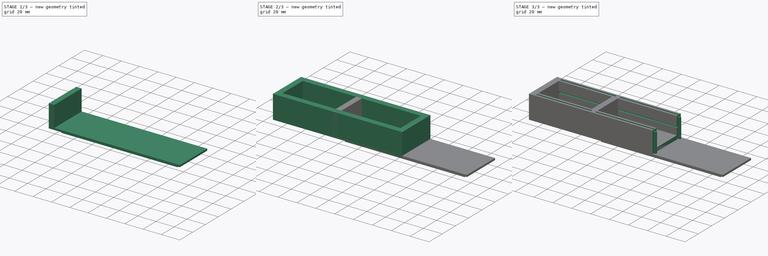
[diagram: build sequence overview — one tinted view per stage of 3, left to right]
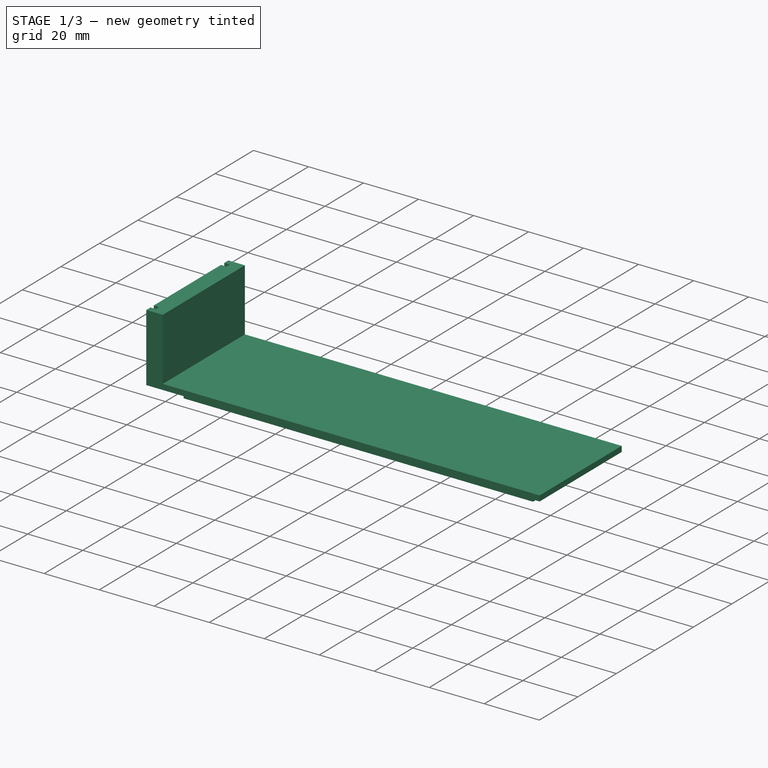
[diagram: stage 1 of 3 — iso view after this stage's code; geometry added in this stage tinted green]
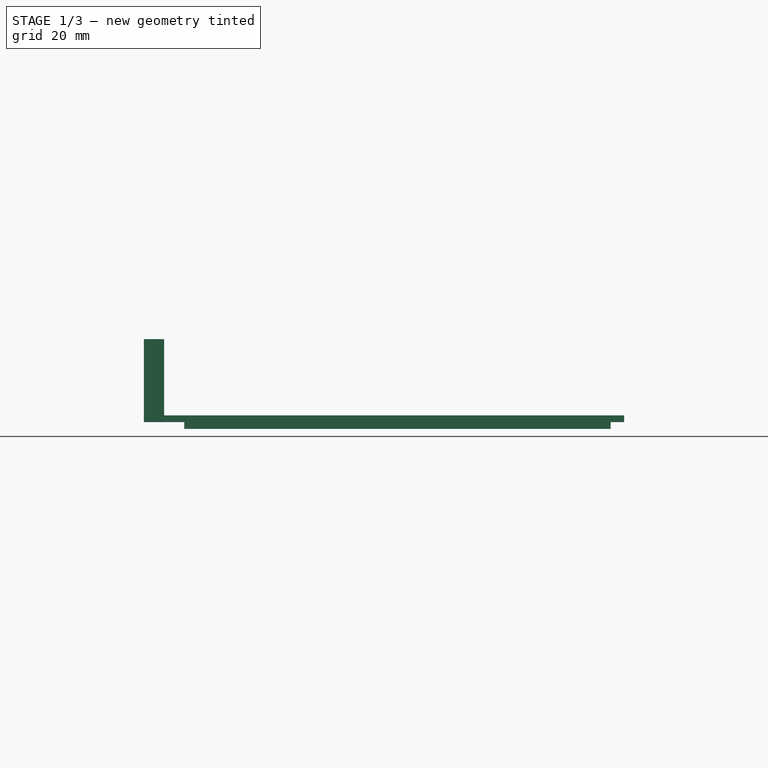
[diagram: stage 1 of 3 — front view after this stage's code; geometry added in this stage tinted green]
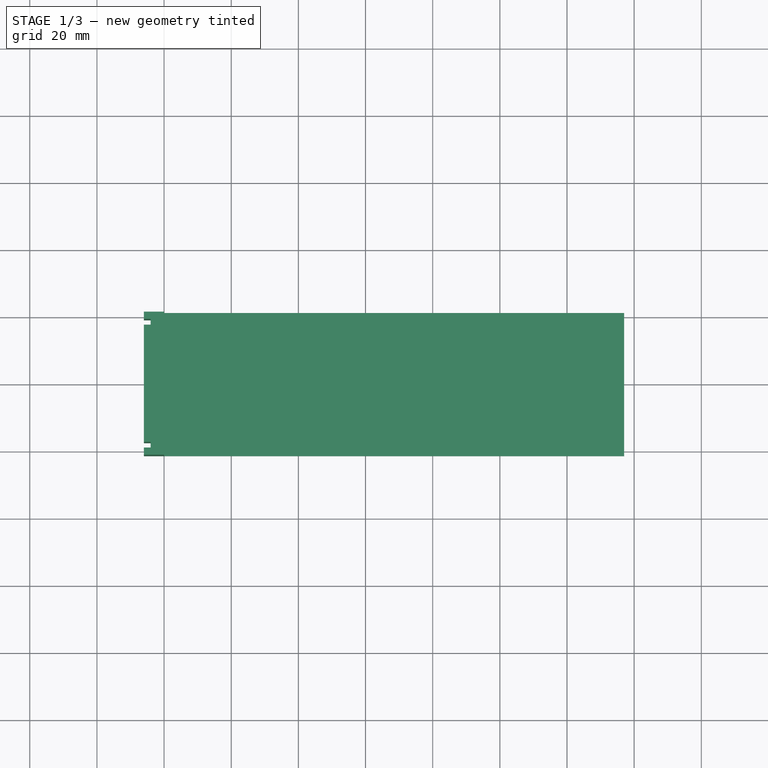
[diagram: stage 1 of 3 — top view after this stage's code; geometry added in this stage tinted green]
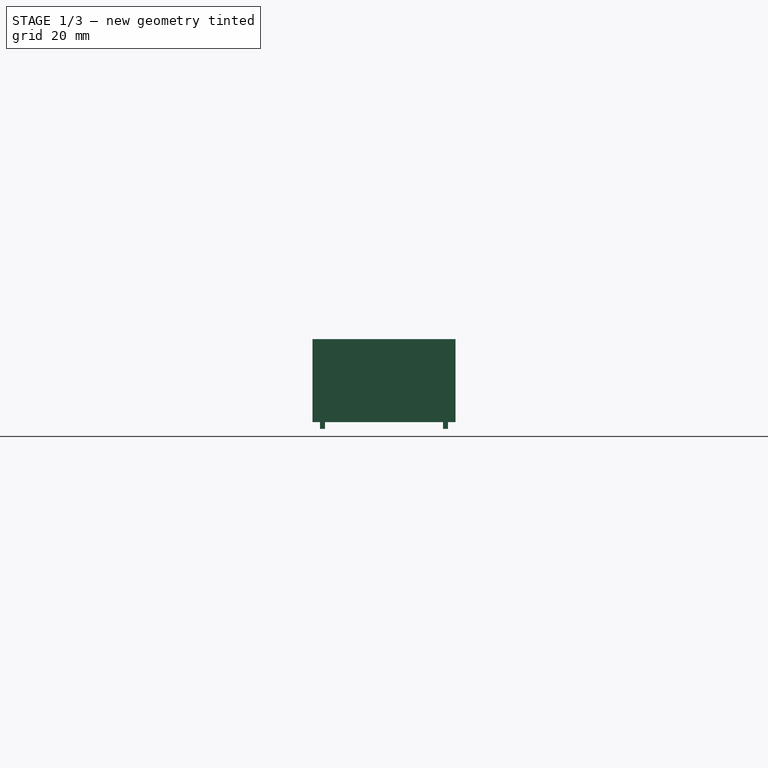
[diagram: stage 1 of 3 — right view after this stage's code; geometry added in this stage tinted green]
FCSTD DOCUMENT  (FreeCAD 0.19R24366 (Git))
Label: biky
License: All rights reserved
LicenseURL: http://en.wikipedia.org/wiki/All_rights_reserved
objects: Sketcher::SketchObject×8, PartDesign::Pocket×5, App::Part×4, PartDesign::Pad×3, PartDesign::Body×3, Spreadsheet::Sheet×1, Part::Feature×1, App::DocumentObjectGroup×1
note: 28 computed .brp shape members not serialized (recipe doc carries the construction recipe); baked Part::Feature solids carry a one-line shape summary decoded from their .brp

FEATURE [PartDesign::Body] Body
  Group = -> [Sketch,Pad,Sketch001,Pocket,Sketch002,Pocket001,Sketch003,Pocket002,Sketch004,Pocket003]
  Origin = -> Origin001
  Tip = -> Pocket003
FEATURE [App::Part] Part  label="Hull"
  Group = -> [Body]
  Origin = -> Origin
FEATURE [Sketcher::SketchObject] Sketch005
  FullyConstrained = true
  MapMode = 5
  Placement = pos=(0,0,0) rot=(0.57735,0.57735,0.57735;2.0944rad)
  Support = -> [YZ_Plane003]
  expr: .AttachmentOffset.Base.x = 0
  expr: .AttachmentOffset.Base.z = 0
  expr: Constraints[20] = (<<param>>.thickness - <<param>>.notchthickness) / 2 + 0.1
  expr: Constraints[33] = <<param>>.notchthickness - 0.2
  expr: Constraints[22] = <<param>>.widthtot
  expr: .AttachmentOffset.Base.y = 0
  expr: Constraints[18] = <<param>>.notchdepth
  sketch-geometry (12):
    g0: LineSegment StartX=-21.31 StartY=2 StartZ=0 EndX=21.31 EndY=2 EndZ=0
    g1: LineSegment StartX=21.31 StartY=2 StartZ=0 EndX=21.31 EndY=0 EndZ=0
    g2: LineSegment StartX=21.31 StartY=0 StartZ=0 EndX=19.06 EndY=0 EndZ=0
    g3: LineSegment StartX=19.06 StartY=-2 StartZ=0 EndX=17.56 EndY=-2 EndZ=0
    g4: LineSegment StartX=17.56 StartY=0 StartZ=0 EndX=-17.56 EndY=0 EndZ=0
    g5: LineSegment StartX=-17.56 StartY=0 StartZ=0 EndX=-17.56 EndY=-2 EndZ=0
    g6: LineSegment StartX=-17.56 StartY=-2 StartZ=0 EndX=-19.06 EndY=-2 EndZ=0
    g7: LineSegment StartX=-19.06 StartY=-2 StartZ=0 EndX=-19.06 EndY=0 EndZ=0
    g8: LineSegment StartX=-19.06 StartY=0 StartZ=0 EndX=-21.31 EndY=0 EndZ=0
    g9: LineSegment StartX=-21.31 StartY=2 StartZ=0 EndX=-21.31 EndY=0 EndZ=0
    g10: LineSegment StartX=17.56 StartY=-2 StartZ=0 EndX=17.56 EndY=0 EndZ=0
    g11: LineSegment StartX=19.06 StartY=-2 StartZ=0 EndX=19.06 EndY=0 EndZ=0
  constraints (35):
    c: Coincident(g9,g0)
    c: Coincident(g9,g8)
    c: Coincident(g8,g7)
    c: Coincident(g6,g7)
    c: Coincident(g6,g5)
    c: Coincident(g5,g4)
    c: Coincident(g2,g1)
    c: Coincident(g0,g1)
    c: Horizontal(g0)
    c: Horizontal(g4)
    c: Vertical(g9)
    c: Vertical(g7)
    c: Vertical(g5)
    c: Vertical(g1)
    c: Horizontal(g8)
    c: Horizontal(g6)
    c: Horizontal(g2)
    c: DistanceY(g9,g9) = 2
    c: DistanceY(g7,g7) = 2
    c: Equal(g5,g7)
    c: DistanceX(g2,g2) = 2.25
    c: Equal(g8,g2)
    c: DistanceX(g0,g0) = 42.62
    c: Coincident(g10,g4)
    c: Coincident(g11,g2)
    c: Coincident(g3,g10)
    c: Coincident(g11,g3)
    c: Horizontal(g3)
    c: Vertical(g10)
    c: Vertical(g11)
    c: Equal(g5,g10)
    c: Equal(g3,g6)
    c: Equal(g11,g10)
    c: DistanceX(g6,g6) = 1.5
    c: Symmetric(g4,g4,g-1)
FEATURE [PartDesign::Pad] Pad001
  AllowMultiFace = false
  Direction = (1,1,1)
  Length = 137
  Length2 = 100
  Placement = pos=(0,0,0) rot=(0.57735,0.57735,0.57735;2.0944rad)
  Profile = -> Sketch005
  Type = 0
  expr: Length = <<param>>.length
FEATURE [Part::Feature] Board_outline
  shape: bbox 124.7 x 34.54 x 1.6 mm, 128 faces (baked)
FEATURE [App::DocumentObjectGroup] Board_Geoms
  Group = -> [Board_outline]
FEATURE [App::Part] Part002  label="PCB"
  Group = -> [Board_outline,Board_Geoms]
  Origin = -> Origin004
  Placement = pos=(-126.2,89.02,14.66) rot=(0,0,1;0rad)
FEATURE [Sketcher::SketchObject] Sketch006
  FullyConstrained = true
  MapMode = 5
  Support = -> [XY_Plane006]
  expr: Constraints[24] = <<param>>.notchdepth
  expr: Constraints[28] = <<param>>.thickness - <<param>>.notchdepth
  expr: Constraints[30] = (<<param>>.thickness - <<param>>.notchthickness) / 2
  expr: Constraints[31] = <<param>>.notchthickness
  expr: Constraints[29] = <<param>>.widthtot
  sketch-geometry (14):
    g0: LineSegment StartX=-6 StartY=21.31 StartZ=0 EndX=0 EndY=21.31 EndZ=0
    g1: LineSegment StartX=0 StartY=21.31 StartZ=0 EndX=0 EndY=-21.31 EndZ=0
    g2: LineSegment StartX=0 StartY=-21.31 StartZ=0 EndX=-6 EndY=-21.31 EndZ=0
    g3: LineSegment StartX=-6 StartY=19.16 StartZ=0 EndX=-4 EndY=19.16 EndZ=0
    g4: LineSegment StartX=-4 StartY=19.16 StartZ=0 EndX=-4 EndY=17.46 EndZ=0
    g5: LineSegment StartX=-4 StartY=17.46 StartZ=0 EndX=-6 EndY=17.46 EndZ=0
    g6: LineSegment StartX=-6 StartY=-17.46 StartZ=0 EndX=-4 EndY=-17.46 EndZ=0
    g7: LineSegment StartX=-4 StartY=-17.46 StartZ=0 EndX=-4 EndY=-19.16 EndZ=0
    g8: LineSegment StartX=-4 StartY=-19.16 StartZ=0 EndX=-6 EndY=-19.16 EndZ=0
    g9: LineSegment StartX=-6 StartY=21.31 StartZ=0 EndX=-6 EndY=19.16 EndZ=0
    g10: LineSegment StartX=-6 StartY=-19.16 StartZ=0 EndX=-6 EndY=-21.31 EndZ=0
    g11: LineSegment StartX=-6 StartY=17.46 StartZ=0 EndX=-6 EndY=-17.46 EndZ=0
    g12: LineSegment StartX=-4 StartY=19.16 StartZ=0 EndX=0 EndY=19.16 EndZ=0
    g13: LineSegment StartX=-4 StartY=-17.46 StartZ=0 EndX=0 EndY=-17.46 EndZ=0
  constraints (41):
    c: Coincident(g0,g1)
    c: Coincident(g1,g2)
    c: Horizontal(g0)
    c: Horizontal(g2)
    c: Vertical(g1)
    c: Coincident(g3,g4)
    c: Coincident(g4,g5)
    c: Horizontal(g3)
    c: Horizontal(g5)
    c: Vertical(g4)
    c: Coincident(g6,g7)
    c: Coincident(g7,g8)
    c: Horizontal(g6)
    c: Horizontal(g8)
    c: Vertical(g7)
    c: Vertical(g10)
    c: Vertical(g11)
    c: Coincident(g9,g0)
    c: Coincident(g3,g9)
    c: Coincident(g5,g11)
    c: Coincident(g11,g6)
    c: Coincident(g10,g8)
    c: Coincident(g2,g10)
    c: Vertical(g9)
    c: DistanceX(g3,g3) = 2
    c: Horizontal(g12)
    c: Coincident(g12,g3)
    c: PointOnObject(g12,g1)
    c: DistanceX(g12,g12) = 4
    c: DistanceY(g1,g1) = 42.62
    c: DistanceY(g9,g9) = 2.15
    c: DistanceY(g4,g4) = 1.7
    c: Equal(g3,g5)
    c: Equal(g2,g0)
    c: Equal(g9,g10)
    c: Equal(g7,g4)
    c: Horizontal(g13)
    c: Coincident(g6,g13)
    c: PointOnObject(g13,g1)
    c: Equal(g13,g12)
    c: Symmetric(g1,g1,g-1)
FEATURE [PartDesign::Pad] Pad002
  Direction = (1,1,1)
  Length = 24.7
  Length2 = 100
  Profile = -> Sketch006
  Type = 0
  expr: Length = <<param>>.height
FEATURE [PartDesign::Body] Body002
  Group = -> [Sketch006,Pad002]
  Origin = -> Origin006
  Tip = -> Pad002
FEATURE [App::Part] Part003  label="Side"
  Group = -> [Body002]
  Origin = -> Origin005
  Placement = pos=(68.5,0,0) rot=(0,0,1;0rad)
FEATURE [Sketcher::SketchObject] Sketch007
  ExternalGeometry = -> [Pad001]
  FullyConstrained = true
  MapMode = 5
  Placement = pos=(8e-16,-1.1e-15,-2) rot=(0.707107,0.707107,0;3.14159rad)
  Support = -> [Pad001]
  expr: Constraints[9] = <<param>>.thickness - <<param>>.notchdepth
  expr: Constraints[19] = <<param>>.thickness
  sketch-geometry (8):
    g0: LineSegment StartX=-21.31 StartY=137 StartZ=0 EndX=21.31 EndY=137 EndZ=0
    g1: LineSegment StartX=21.31 StartY=137 StartZ=0 EndX=21.31 EndY=133 EndZ=0
    g2: LineSegment StartX=21.31 StartY=133 StartZ=0 EndX=-21.31 EndY=133 EndZ=0
    g3: LineSegment StartX=-21.31 StartY=133 StartZ=0 EndX=-21.31 EndY=137 EndZ=0
    g4: LineSegment StartX=-21.31 StartY=6 StartZ=0 EndX=21.31 EndY=6 EndZ=0
    g5: LineSegment StartX=21.31 StartY=6 StartZ=0 EndX=21.31 EndY=0 EndZ=0
    g6: LineSegment StartX=21.31 StartY=0 StartZ=0 EndX=-21.31 EndY=0 EndZ=0
    g7: LineSegment StartX=-21.31 StartY=0 StartZ=0 EndX=-21.31 EndY=6 EndZ=0
  constraints (20):
    c: Coincident(g0,g1)
    c: Coincident(g1,g2)
    c: Coincident(g2,g3)
    c: Coincident(g3,g0)
    c: Horizontal(g2)
    c: Vertical(g1)
    c: Vertical(g3)
    c: Coincident(g-4,g0)
    c: Coincident(g-6,g0)
    c: DistanceY(g1,g1) = 4
    c: Coincident(g4,g5)
    c: Coincident(g5,g6)
    c: Coincident(g6,g7)
    c: Coincident(g7,g4)
    c: Horizontal(g4)
    c: Vertical(g5)
    c: Vertical(g7)
    c: Coincident(g6,g-4)
    c: Coincident(g5,g-6)
    c: DistanceY(g5,g5) = 6
FEATURE [PartDesign::Pocket] Pocket004
  BaseFeature = -> Pad001
  Length = 2
  Length2 = 100
  Placement = pos=(0,0,0) rot=(0.57735,0.57735,0.57735;2.0944rad)
  Profile = -> Sketch007
  Type = 0
  expr: Length = <<param>>.notchdepth
FEATURE [PartDesign::Body] Body001
  Group = -> [Sketch005,Pad001,Sketch007,Pocket004]
  Origin = -> Origin003
  Placement = pos=(0,0,24.7) rot=(0,0,1;0rad)
  Tip = -> Pocket004
  expr: .Placement.Base.z = <<param>>.height
FEATURE [App::Part] Part001  label="screen"
  Group = -> [Body001]
  Origin = -> Origin002
  Placement = pos=(-68.5,0,0) rot=(0,0,1;0rad)
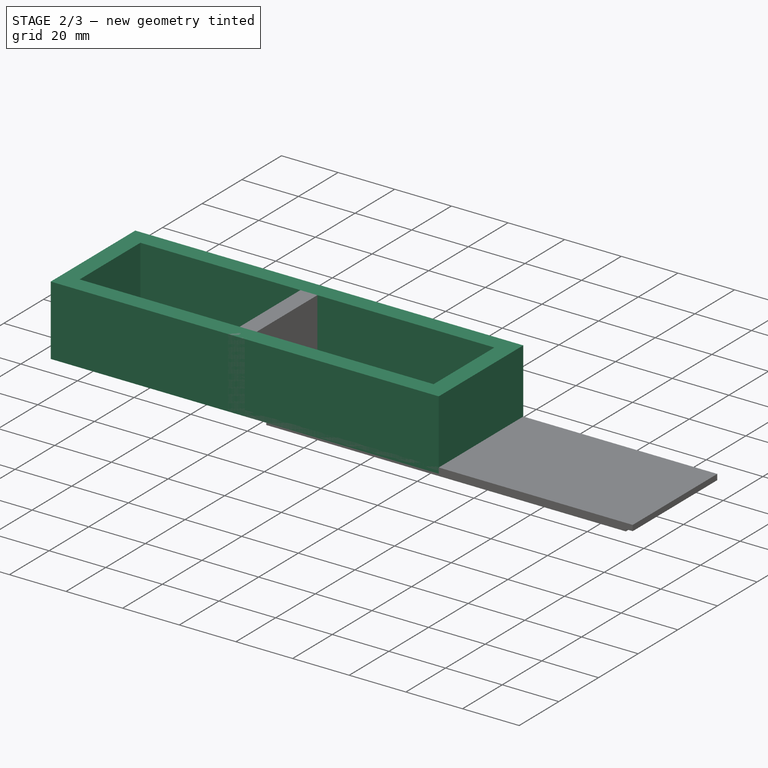
[diagram: stage 2 of 3 — iso view after this stage's code; geometry added in this stage tinted green]
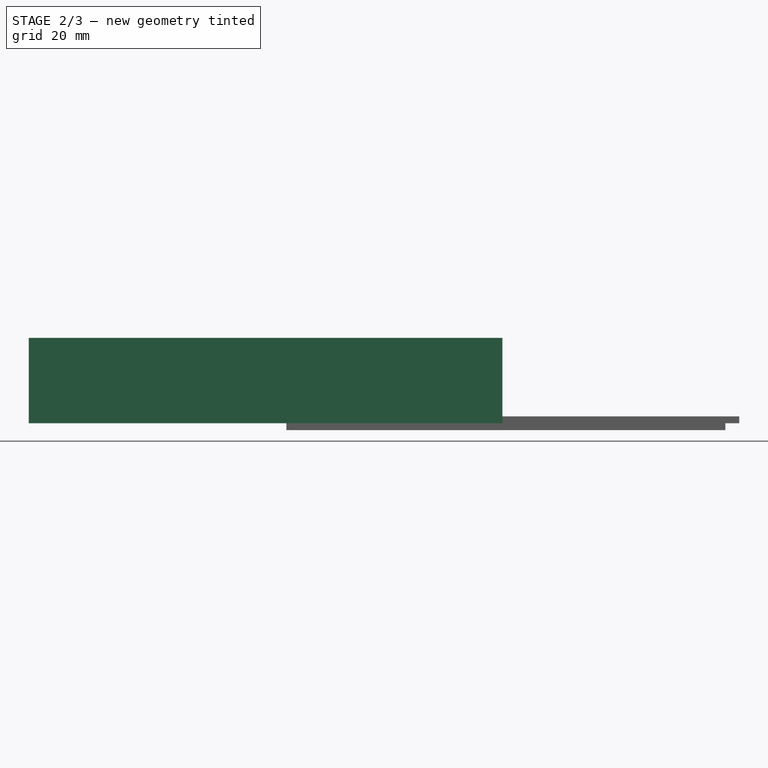
[diagram: stage 2 of 3 — front view after this stage's code; geometry added in this stage tinted green]
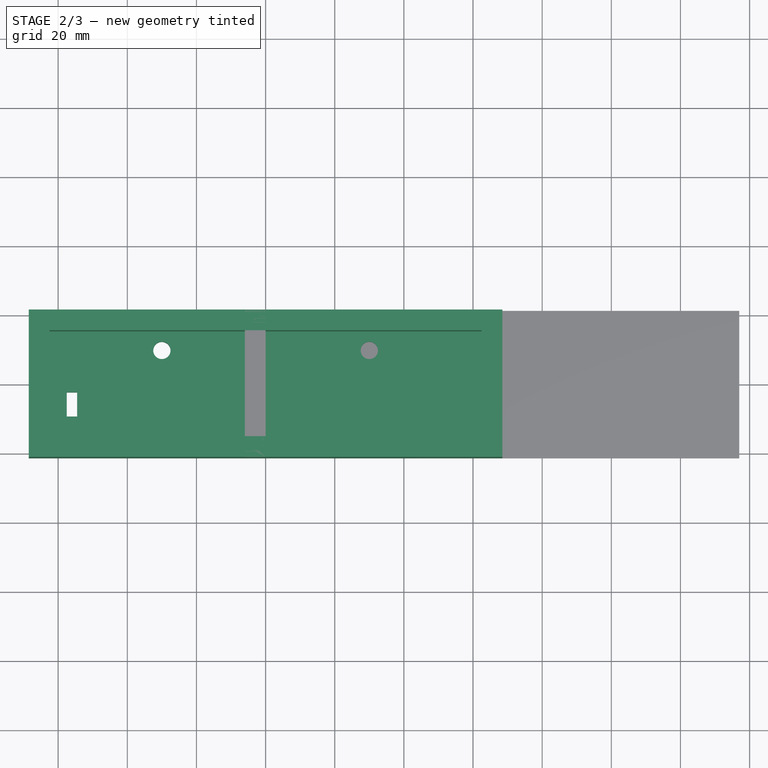
[diagram: stage 2 of 3 — top view after this stage's code; geometry added in this stage tinted green]
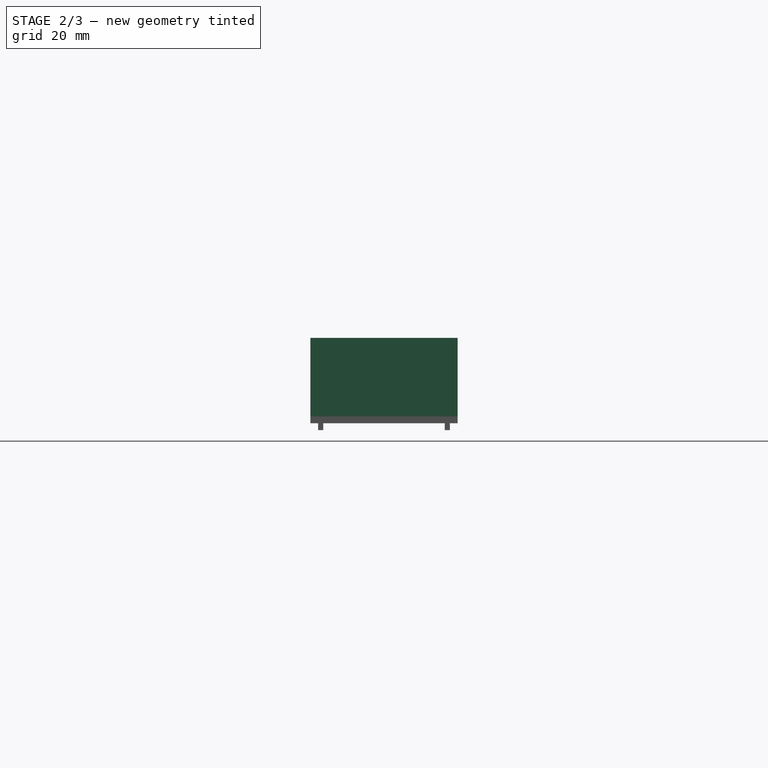
[diagram: stage 2 of 3 — right view after this stage's code; geometry added in this stage tinted green]
FEATURE [Sketcher::SketchObject] Sketch
  FullyConstrained = true
  MapMode = 5
  Support = -> [XY_Plane001]
  expr: Constraints[26] = <<param>>.thickness + 5
  expr: Constraints[25] = <<param>>.thickness + 8 - <<param>>.notchdepth
  expr: Constraints[24] = <<param>>.thickness + <<param>>.holeradius + 3
  expr: Constraints[12] = <<param>>.holeradius
  expr: Constraints[11] = <<param>>.holeradius
  expr: Constraints[13] = <<param>>.holespacing
  expr: Constraints[7] = <<param>>.widthtot
  expr: Constraints[6] = <<param>>.length
  sketch-geometry (10):
    g0: LineSegment StartX=-68.5 StartY=21.31 StartZ=0 EndX=68.5 EndY=21.31 EndZ=0
    g1: LineSegment StartX=68.5 StartY=21.31 StartZ=0 EndX=68.5 EndY=-21.31 EndZ=0
    g2: LineSegment StartX=68.5 StartY=-21.31 StartZ=0 EndX=-68.5 EndY=-21.31 EndZ=0
    g3: LineSegment StartX=-68.5 StartY=-21.31 StartZ=0 EndX=-68.5 EndY=21.31 EndZ=0
    g4: Circle CenterX=30 CenterY=9.81 CenterZ=0 NormalX=0 NormalY=0 NormalZ=1 AngleXU=0 Radius=2.5
    g5: Circle CenterX=-30 CenterY=9.81 CenterZ=0 NormalX=0 NormalY=0 NormalZ=1 AngleXU=0 Radius=2.5
    g6: LineSegment StartX=-57.5 StartY=-2.31 StartZ=0 EndX=-54.5 EndY=-2.31 EndZ=0
    g7: LineSegment StartX=-54.5 StartY=-2.31 StartZ=0 EndX=-54.5 EndY=-9.31 EndZ=0
    g8: LineSegment StartX=-54.5 StartY=-9.31 StartZ=0 EndX=-57.5 EndY=-9.31 EndZ=0
    g9: LineSegment StartX=-57.5 StartY=-9.31 StartZ=0 EndX=-57.5 EndY=-2.31 EndZ=0
  constraints (27):
    c: Coincident(g0,g1)
    c: Coincident(g1,g2)
    c: Coincident(g2,g3)
    c: Coincident(g3,g0)
    c: Horizontal(g2)
    c: Vertical(g1)
    c: DistanceX(g0,g0) = 137
    c: DistanceY(g1,g1) = 42.62
    c: Symmetric(g0,g2,g-1)
    c: Symmetric(g0,g0,g-2)
    c: Symmetric(g4,g5,g-2)
    c: Radius(g5) = 2.5
    c: Radius(g4) = 2.5
    c: DistanceX(g5,g4) = 60
    c: Coincident(g6,g7)
    c: Coincident(g7,g8)
    c: Coincident(g8,g9)
    c: Coincident(g9,g6)
    c: Horizontal(g6)
    c: Horizontal(g8)
    c: Vertical(g7)
    c: Vertical(g9)
    c: DistanceX(g6,g6) = 3
    c: DistanceY(g7,g7) = 7
    c: DistanceY(g5,g0) = 11.5
    c: DistanceY(g2,g7) = 12
    c: DistanceX(g2,g6) = 11
FEATURE [PartDesign::Pad] Pad
  AllowMultiFace = false
  Direction = (1,1,1)
  Length = 24.7
  Length2 = 100
  Profile = -> Sketch
  Type = 0
  expr: Length = <<param>>.height
FEATURE [Spreadsheet::Sheet] Spreadsheet  label="param"
  cells = A1=Length; B1(length)==B12 + B7 * 2; A2=widthtot; B2(widthtot)==B15 + B7 * 2; A3=separation; B3==1 / 3; A4=width1; B4(width1)==B2 - B2 * B3; A5=width2; B5(width2)==B2 * B3; A6=height; B6(height)==7 + B17 + B7 + 10; A7=thickness; B7(thickness)=6; A9=hole spacing; B9(holespacing)=60; A10=hole radius; B10(holeradius)=2.5; A12=innerLength; B12(innerlength)=125; A13=innerwidth1; B13(innerwidth1)==B4 - B7 * 1.5; A14=innerwidth2; B14(innerwidth2)==B5 - B7 * 1.5; A15=innewidthtot; B15(innewidthtot)==34.62 - B16 * 2; A16=notchdepth; B16(notchdepth)=2; A17=notchthickness; B17(notchthickness)=1.7
FEATURE [Sketcher::SketchObject] Sketch001
  FullyConstrained = true
  MapMode = 5
  Placement = pos=(0,0,24.7) rot=(0,0,1;0rad)
  Support = -> [Pad]
  expr: Constraints[7] = <<param>>.innewidthtot
  expr: Constraints[6] = <<param>>.innerlength
  sketch-geometry (4):
    g0: LineSegment StartX=-62.5 StartY=15.31 StartZ=0 EndX=62.5 EndY=15.31 EndZ=0
    g1: LineSegment StartX=62.5 StartY=15.31 StartZ=0 EndX=62.5 EndY=-15.31 EndZ=0
    g2: LineSegment StartX=62.5 StartY=-15.31 StartZ=0 EndX=-62.5 EndY=-15.31 EndZ=0
    g3: LineSegment StartX=-62.5 StartY=-15.31 StartZ=0 EndX=-62.5 EndY=15.31 EndZ=0
  constraints (10):
    c: Coincident(g0,g1)
    c: Coincident(g1,g2)
    c: Coincident(g2,g3)
    c: Coincident(g3,g0)
    c: Horizontal(g2)
    c: Vertical(g1)
    c: DistanceX(g0,g0) = 125
    c: DistanceY(g3,g3) = 30.62
    c: Symmetric(g0,g0,g-2)
    c: Symmetric(g0,g2,g-1)
FEATURE [PartDesign::Pocket] Pocket
  AllowMultiFace = false
  BaseFeature = -> Pad
  Length = 18.7
  Length2 = 100
  Profile = -> Sketch001
  Type = 0
  expr: Length = <<param>>.height - 6
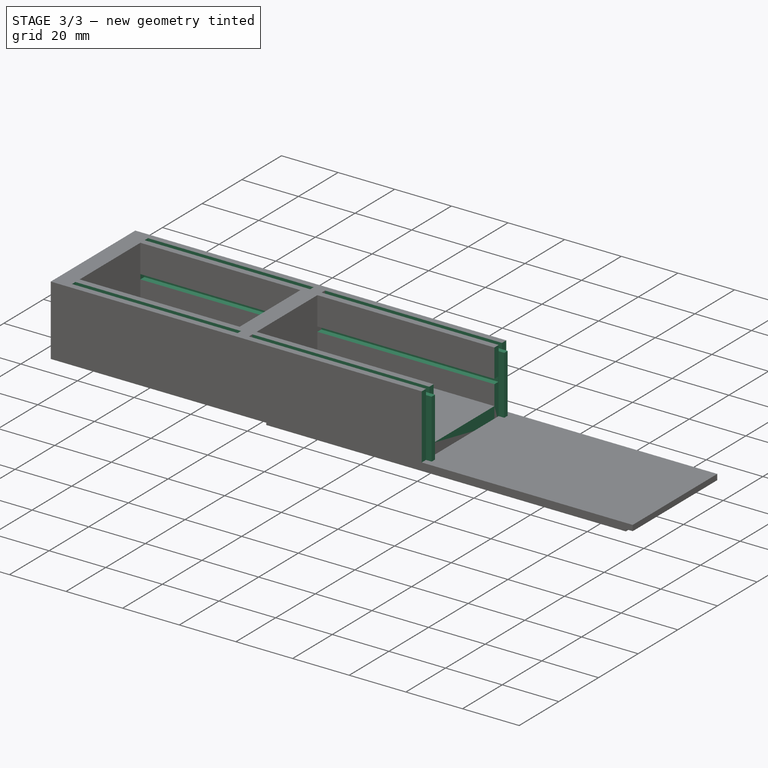
[diagram: stage 3 of 3 — iso view after this stage's code; geometry added in this stage tinted green]
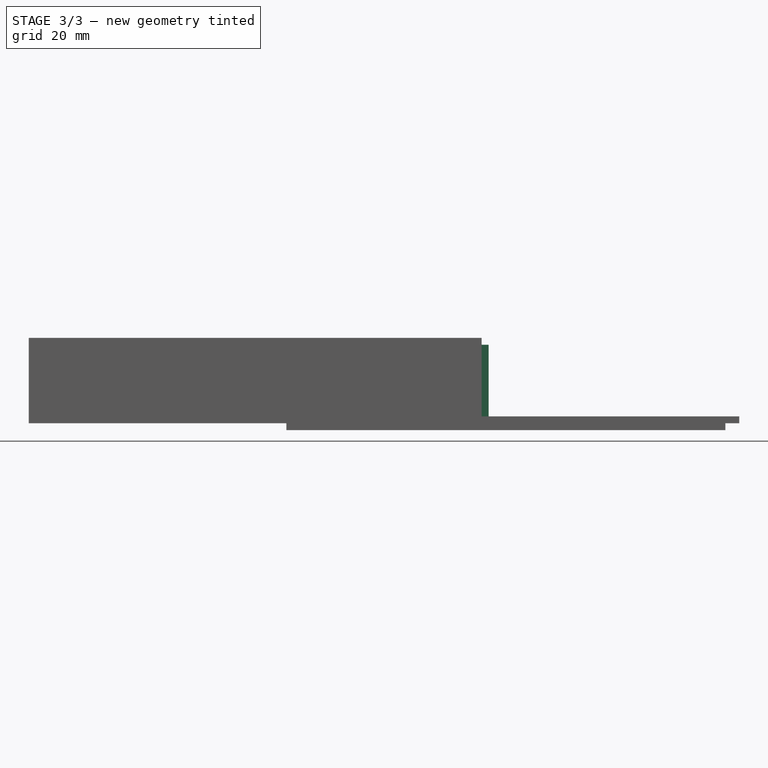
[diagram: stage 3 of 3 — front view after this stage's code; geometry added in this stage tinted green]
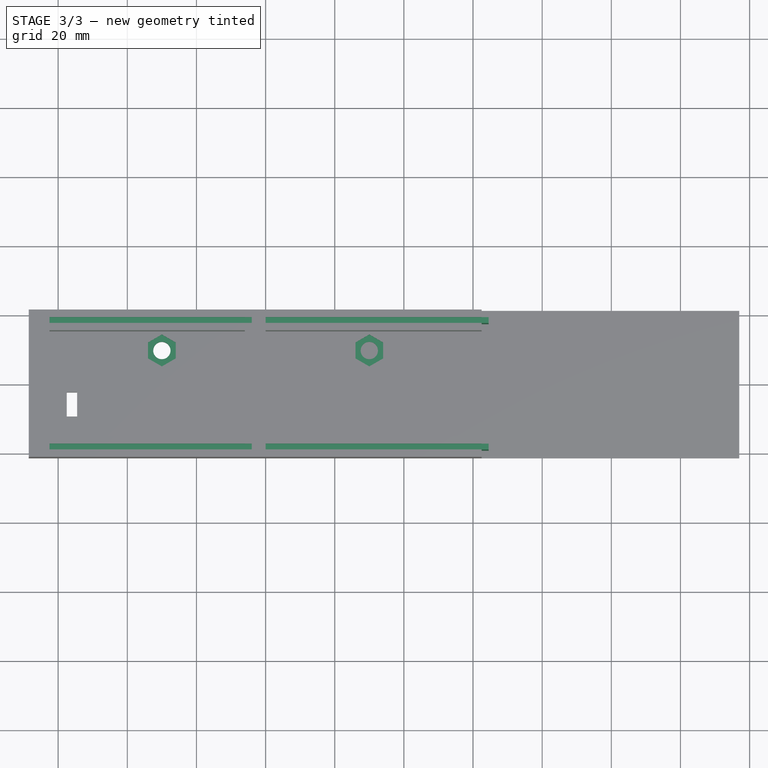
[diagram: stage 3 of 3 — top view after this stage's code; geometry added in this stage tinted green]
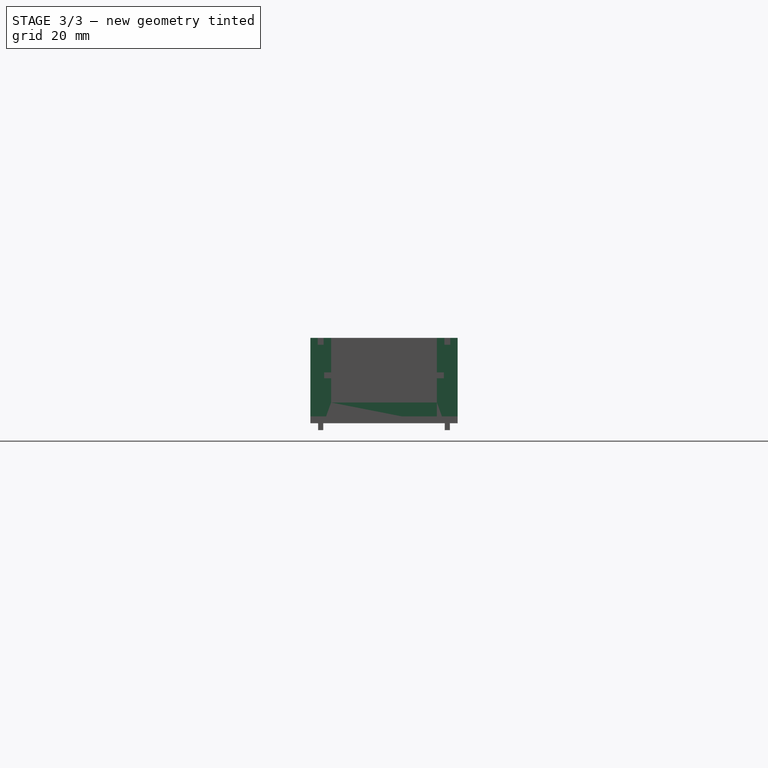
[diagram: stage 3 of 3 — right view after this stage's code; geometry added in this stage tinted green]
FEATURE [Sketcher::SketchObject] Sketch002
  ExternalGeometry = -> [Pocket]
  FullyConstrained = false
  MapMode = 5
  Placement = pos=(0,0,6) rot=(0,0,1;0rad)
  Support = -> [Pocket]
  sketch-geometry (16):
    g0: LineSegment StartX=-26 StartY=7.5006 StartZ=0 EndX=-26 EndY=12.1194 EndZ=0
    g1: LineSegment StartX=-26 StartY=12.1194 StartZ=0 EndX=-30 EndY=14.4288 EndZ=0
    g2: LineSegment StartX=-30 StartY=14.4288 StartZ=0 EndX=-34 EndY=12.1194 EndZ=0
    g3: LineSegment StartX=-34 StartY=12.1194 StartZ=0 EndX=-34 EndY=7.5006 EndZ=0
    g4: LineSegment StartX=-34 StartY=7.5006 StartZ=0 EndX=-30 EndY=5.1912 EndZ=0
    g5: LineSegment StartX=-30 StartY=5.1912 StartZ=0 EndX=-26 EndY=7.5006 EndZ=0
    g6: Circle CenterX=-30 CenterY=9.81 CenterZ=0 NormalX=0 NormalY=0 NormalZ=1 AngleXU=0 Radius=4.6188
    g7: LineSegment StartX=-34 StartY=1.21017 StartZ=0 EndX=-26 EndY=1.21017 EndZ=0
    g8: LineSegment StartX=34 StartY=7.5006 StartZ=0 EndX=34 EndY=12.1194 EndZ=0
    g9: LineSegment StartX=34 StartY=12.1194 StartZ=0 EndX=30 EndY=14.4288 EndZ=0
    g10: LineSegment StartX=30 StartY=14.4288 StartZ=0 EndX=26 EndY=12.1194 EndZ=0
    g11: LineSegment StartX=26 StartY=12.1194 StartZ=0 EndX=26 EndY=7.5006 EndZ=0
    g12: LineSegment StartX=26 StartY=7.5006 StartZ=0 EndX=30 EndY=5.1912 EndZ=0
    g13: LineSegment StartX=30 StartY=5.1912 StartZ=0 EndX=34 EndY=7.5006 EndZ=0
    g14: Circle CenterX=30 CenterY=9.81 CenterZ=0 NormalX=0 NormalY=0 NormalZ=1 AngleXU=0 Radius=4.6188
    g15: LineSegment StartX=26 StartY=-4.09057 StartZ=0 EndX=34 EndY=-4.09057 EndZ=0
  constraints (38):
    c: Coincident(g0,g1)
    c: Coincident(g1,g2)
    c: Coincident(g2,g3)
    c: Coincident(g3,g4)
    c: Coincident(g4,g5)
    c: Coincident(g5,g0)
    c: Equal(g0, g1-g5) x5
    c: PointOnObject(g0,g6)
    c: PointOnObject(g1,g6)
    c: PointOnObject(g2,g6)
    c: PointOnObject(g3,g6)
    c: PointOnObject(g4,g6)
    c: PointOnObject(g5,g6)
    c: Vertical(g3)
    c: Horizontal(g7)
    c: PointOnObject(g7,g3)
    c: PointOnObject(g7,g0)
    c: DistanceX(g7,g7) = 8
    c: Coincident(g6,g-3)
    c: Coincident(g8,g9)
    c: Coincident(g9,g10)
    c: Coincident(g10,g11)
    c: Coincident(g11,g12)
    c: Coincident(g12,g13)
    c: Coincident(g13,g8)
    c: Equal(g8, g9-g13) x5
    c: PointOnObject(g8,g14)
    c: PointOnObject(g9,g14)
    c: PointOnObject(g10,g14)
    c: PointOnObject(g11,g14)
    c: PointOnObject(g12,g14)
    c: PointOnObject(g13,g14)
    c: Coincident(g14,g-4)
    c: Vertical(g11)
    c: PointOnObject(g15,g8)
    c: PointOnObject(g15,g11)
    c: Horizontal(g15)
    c: DistanceX(g15,g15) = 8
FEATURE [PartDesign::Pocket] Pocket001
  AllowMultiFace = false
  BaseFeature = -> Pocket
  Length = 2
  Length2 = 100
  Profile = -> Sketch002
  Type = 0
  expr: Length = 2mm
FEATURE [Sketcher::SketchObject] Sketch003
  ExternalGeometry = -> [Pocket001,Sketch001]
  FullyConstrained = true
  MapMode = 5
  Placement = pos=(0,0,24.7) rot=(0,0,1;0rad)
  Support = -> [Pocket001]
  expr: Constraints[36] = (<<param>>.thickness - <<param>>.notchthickness) / 2
  expr: Constraints[34] = <<param>>.notchdepth
  expr: Constraints[33] = <<param>>.notchthickness
  expr: Constraints[32] = (<<param>>.thickness - <<param>>.notchthickness) / 2
  expr: Constraints[29] = <<param>>.notchdepth
  expr: Constraints[31] = <<param>>.notchthickness
  sketch-geometry (14):
    g0: LineSegment StartX=62.5 StartY=21.31 StartZ=0 EndX=68.5 EndY=21.31 EndZ=0
    g1: LineSegment StartX=68.5 StartY=21.31 StartZ=0 EndX=68.5 EndY=-21.31 EndZ=0
    g2: LineSegment StartX=68.5 StartY=-21.31 StartZ=0 EndX=62.5 EndY=-21.31 EndZ=0
    g3: LineSegment StartX=62.5 StartY=-21.31 StartZ=0 EndX=62.5 EndY=-19.16 EndZ=0
    g4: LineSegment StartX=62.5 StartY=-19.16 StartZ=0 EndX=64.5 EndY=-19.16 EndZ=0
    g5: LineSegment StartX=62.5 StartY=21.31 StartZ=0 EndX=62.5 EndY=19.16 EndZ=0
    g6: LineSegment StartX=62.5 StartY=19.16 StartZ=0 EndX=64.5 EndY=19.16 EndZ=0
    g7: LineSegment StartX=64.5 StartY=19.16 StartZ=0 EndX=64.5 EndY=17.46 EndZ=0
    g8: LineSegment StartX=62.5 StartY=15.31 StartZ=0 EndX=62.5 EndY=-15.31 EndZ=0
    g9: LineSegment StartX=64.5 StartY=-17.46 StartZ=0 EndX=64.5 EndY=-19.16 EndZ=0
    g10: LineSegment StartX=62.5 StartY=15.31 StartZ=0 EndX=62.5 EndY=17.46 EndZ=0
    g11: LineSegment StartX=62.5 StartY=17.46 StartZ=0 EndX=64.5 EndY=17.46 EndZ=0
    g12: LineSegment StartX=62.5 StartY=-17.46 StartZ=0 EndX=64.5 EndY=-17.46 EndZ=0
    g13: LineSegment StartX=62.5 StartY=-15.31 StartZ=0 EndX=62.5 EndY=-17.46 EndZ=0
  constraints (38):
    c: Coincident(g5,g0)
    c: Coincident(g0,g1)
    c: Coincident(g1,g2)
    c: Coincident(g2,g3)
    c: Coincident(g3,g4)
    c: Coincident(g4,g9)
    c: Coincident(g7,g6)
    c: Coincident(g6,g5)
    c: PointOnObject(g0,g-3)
    c: PointOnObject(g2,g-6)
    c: Coincident(g0,g-4)
    c: Coincident(g1,g-6)
    c: Vertical(g5)
    c: Vertical(g7)
    c: Vertical(g9)
    c: Vertical(g3)
    c: Horizontal(g6)
    c: Horizontal(g4)
    c: Coincident(g10,g11)
    c: Coincident(g8,g10)
    c: Coincident(g11,g7)
    c: Vertical(g10)
    c: Horizontal(g11)
    c: Coincident(g13,g8)
    c: Coincident(g8,g-5)
    c: Coincident(g13,g12)
    c: Coincident(g12,g9)
    c: Horizontal(g12)
    c: Vertical(g13)
    c: DistanceX(g6,g6) = 2
    c: Equal(g6,g11)
    c: DistanceY(g7,g7) = 1.7
    c: DistanceY(g5,g5) = 2.15
    c: DistanceY(g9,g9) = 1.7
    c: DistanceX(g12,g12) = 2
    c: Equal(g4,g12)
    c: DistanceY(g3,g3) = 2.15
    c: Coincident(g8,g-7)
FEATURE [PartDesign::Pocket] Pocket002
  AllowMultiFace = false
  BaseFeature = -> Pocket001
  Length = 24.7
  Length2 = 100
  Profile = -> Sketch003
  Type = 0
  expr: Length = <<param>>.height
FEATURE [Sketcher::SketchObject] Sketch004
  ExternalGeometry = -> [Pocket002]
  FullyConstrained = true
  MapMode = 5
  Placement = pos=(64.5,0,0) rot=(0.57735,0.57735,0.57735;2.0944rad)
  Support = -> [Pocket002]
  expr: Constraints[18] = <<param>>.notchdepth
  expr: Constraints[42] = <<param>>.notchdepth
  expr: Constraints[17] = <<param>>.notchthickness
  expr: Constraints[41] = <<param>>.notchthickness
  sketch-geometry (18):
    g0: LineSegment StartX=-19.16 StartY=24.7 StartZ=0 EndX=-17.46 EndY=24.7 EndZ=0
    g1: LineSegment StartX=-17.46 StartY=24.7 StartZ=0 EndX=-17.46 EndY=22.7 EndZ=0
    g2: LineSegment StartX=-17.46 StartY=22.7 StartZ=0 EndX=-19.16 EndY=22.7 EndZ=0
    g3: LineSegment StartX=-19.16 StartY=22.7 StartZ=0 EndX=-19.16 EndY=24.7 EndZ=0
    g4: LineSegment StartX=17.46 StartY=22.7 StartZ=0 EndX=19.16 EndY=22.7 EndZ=0
    g5: LineSegment StartX=19.16 StartY=22.7 StartZ=0 EndX=19.16 EndY=24.7 EndZ=0
    g6: LineSegment StartX=19.16 StartY=24.7 StartZ=0 EndX=17.46 EndY=24.7 EndZ=0
    g7: LineSegment StartX=17.46 StartY=24.7 StartZ=0 EndX=17.46 EndY=22.7 EndZ=0
    g8: LineSegment StartX=-17.31 StartY=14.7 StartZ=0 EndX=-15.31 EndY=14.7 EndZ=0
    g9: LineSegment StartX=-15.31 StartY=14.7 StartZ=0 EndX=-15.31 EndY=13 EndZ=0
    g10: LineSegment StartX=-15.31 StartY=13 StartZ=0 EndX=-17.31 EndY=13 EndZ=0
    g11: LineSegment StartX=-17.31 StartY=13 StartZ=0 EndX=-17.31 EndY=14.7 EndZ=0
    g12: LineSegment StartX=15.31 StartY=13 StartZ=0 EndX=17.31 EndY=13 EndZ=0
    g13: LineSegment StartX=17.31 StartY=13 StartZ=0 EndX=17.31 EndY=14.7 EndZ=0
    g14: LineSegment StartX=17.31 StartY=14.7 StartZ=0 EndX=15.31 EndY=14.7 EndZ=0
    g15: LineSegment StartX=15.31 StartY=14.7 StartZ=0 EndX=15.31 EndY=13 EndZ=0
    g16: LineSegment StartX=-15.31 StartY=13 StartZ=0 EndX=-15.31 EndY=6 EndZ=0
    g17: LineSegment StartX=15.31 StartY=13 StartZ=0 EndX=15.31 EndY=6 EndZ=0
  constraints (50):
    c: Coincident(g0,g1)
    c: Coincident(g1,g2)
    c: Coincident(g2,g3)
    c: Coincident(g3,g0)
    c: Horizontal(g0)
    c: Horizontal(g2)
    c: Vertical(g1)
    c: Vertical(g3)
    c: Coincident(g4,g5)
    c: Coincident(g5,g6)
    c: Coincident(g6,g7)
    c: Coincident(g7,g4)
    c: Horizontal(g4)
    c: Horizontal(g6)
    c: Vertical(g5)
    c: Vertical(g7)
    c: Coincident(g0,g-3)
    c: DistanceX(g0,g0) = 1.7
    c: DistanceY(g1,g1) = 2
    c: Equal(g1,g7)
    c: Equal(g2,g6)
    c: Coincident(g8,g9)
    c: Coincident(g9,g10)
    c: Coincident(g10,g11)
    c: Coincident(g11,g8)
    c: Horizontal(g8)
    c: Horizontal(g10)
    c: Vertical(g9)
    c: Vertical(g11)
    c: Coincident(g12,g13)
    c: Coincident(g13,g14)
    c: Coincident(g14,g15)
    c: Coincident(g15,g12)
    c: Horizontal(g12)
    c: Horizontal(g14)
    c: Vertical(g13)
    c: Vertical(g15)
    c: PointOnObject(g8,g-4)
    c: PointOnObject(g12,g-6)
    c: Coincident(g16,g-5)
    c: Coincident(g16,g9)
    c: DistanceY(g11,g11) = 1.7
    c: DistanceX(g8,g8) = 2
    c: DistanceY(g16,g16) = 7
    c: Equal(g14,g8)
    c: Coincident(g17,g12)
    c: Coincident(g17,g-6)
    c: Equal(g9,g15)
    c: Equal(g17,g16)
    c: Coincident(g6,g-7)
FEATURE [PartDesign::Pocket] Pocket003
  AllowMultiFace = false
  BaseFeature = -> Pocket002
  Length = 127
  Length2 = 100
  Profile = -> Sketch004
  Type = 0
  expr: Length = <<param>>.length - 2 * <<param>>.thickness + <<param>>.notchdepth
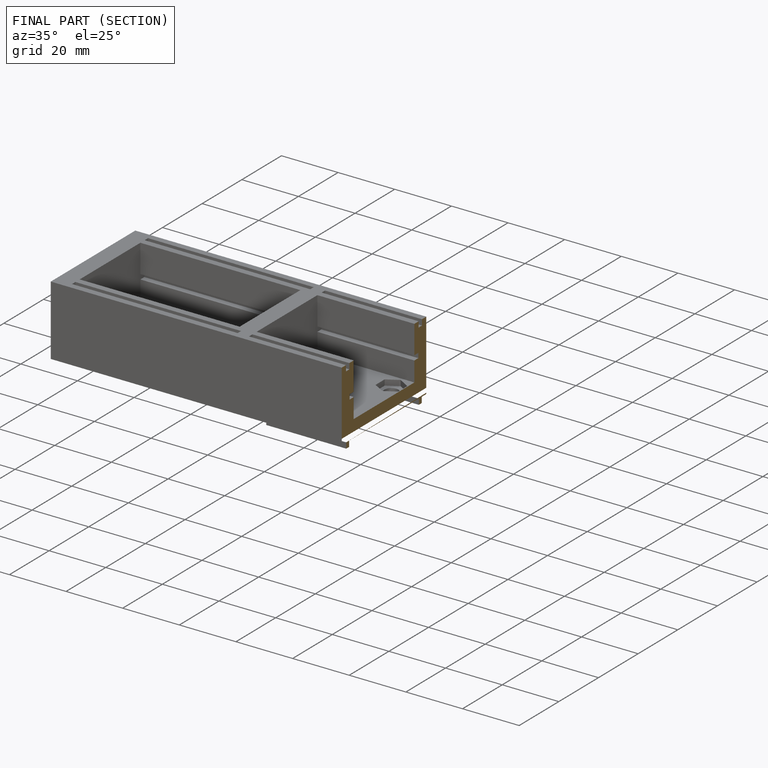
[diagram: finished part — half-section view (interior)]
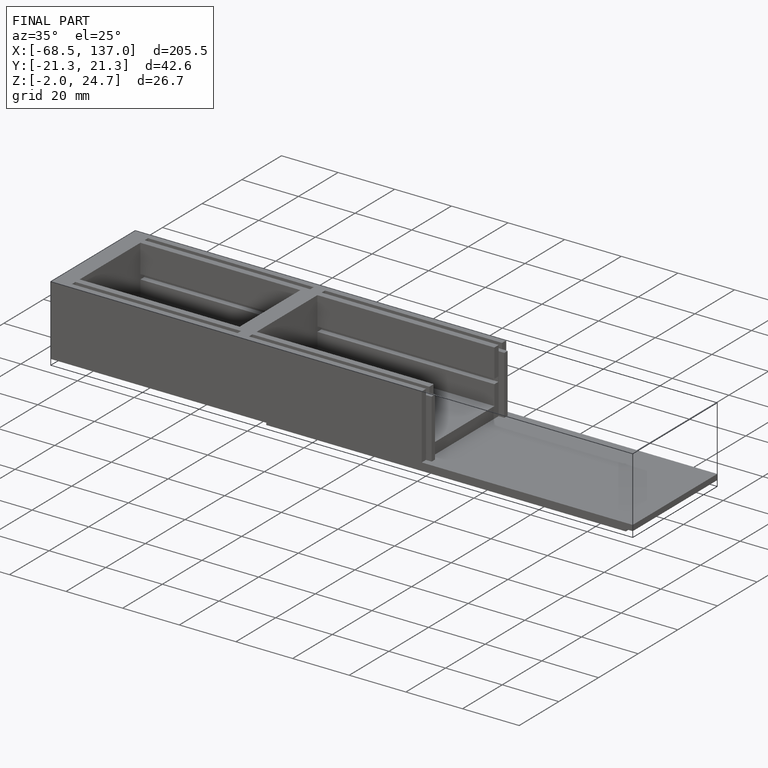
[diagram: finished part — iso view with bounding-box wireframe]
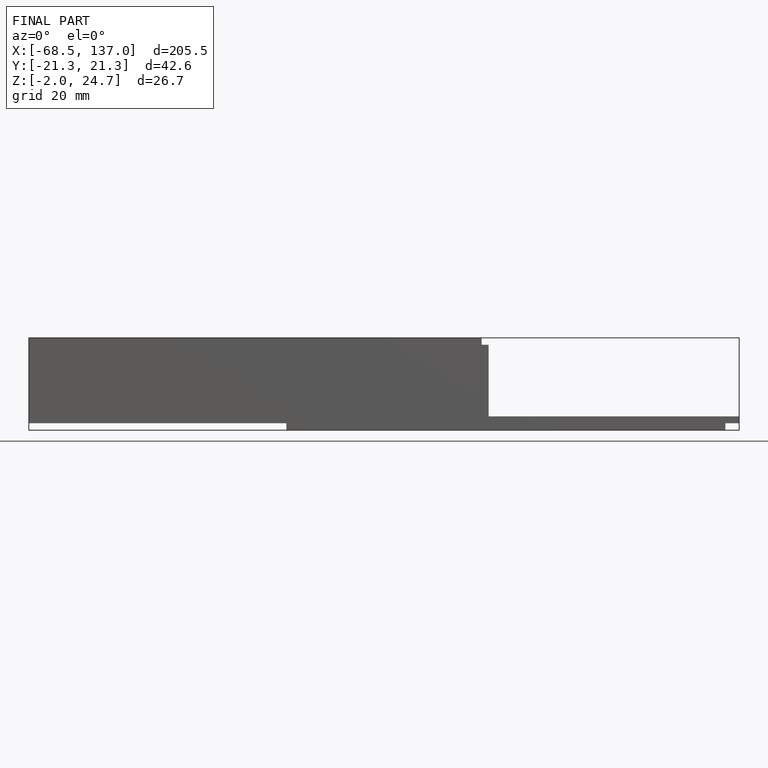
[diagram: finished part — front view with bounding-box wireframe]
